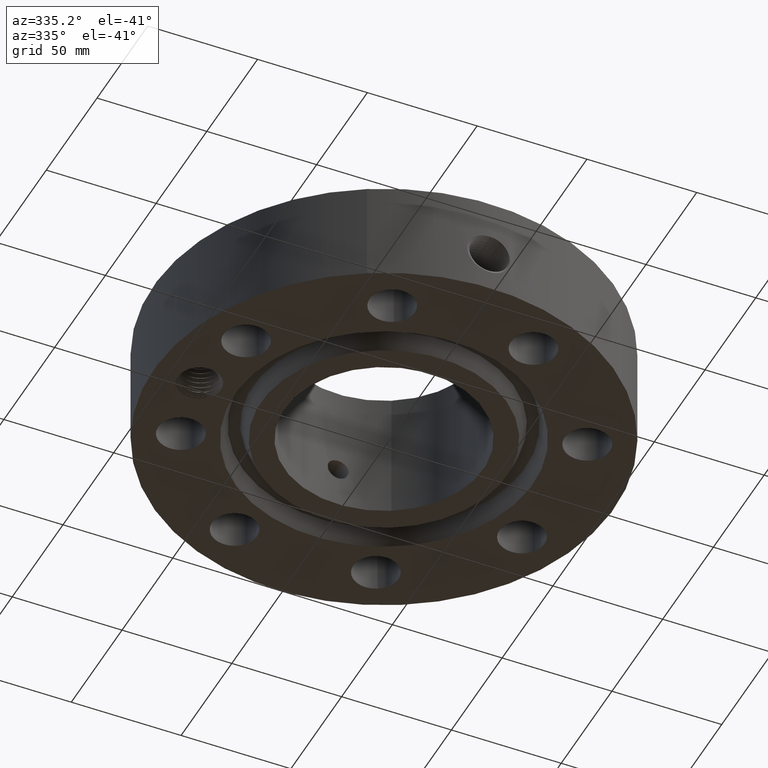
[diagram: clean part render]
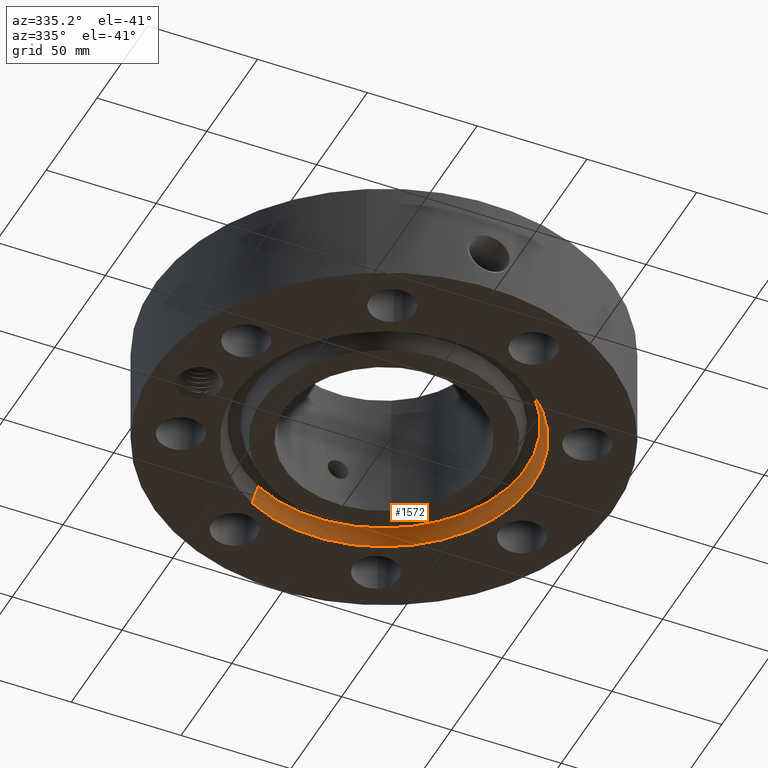
[diagram: same view with one face highlighted and labeled with its STEP entity id]
A machine part, auxiliary view. The second image highlights one B-rep face of the part: STEP entity #1572.
In plain terms, the highlighted conical surface has half-angle 23 deg.
Its self-contained STEP definition (entity closure, byte-faithful):
#377=AXIS2_PLACEMENT_3D('Circle Axis2P3D',#375,#376,$) ;
#1533=AXIS2_PLACEMENT_3D('Cone Axis2P3D',#1530,#1531,#1532) ;
#1563=AXIS2_PLACEMENT_3D('Circle Axis2P3D',#1561,#1562,$) ;
#370=CARTESIAN_POINT('Vertex',(1.28102503916,-2.34490060538,0.)) ;
#372=CARTESIAN_POINT('Vertex',(-1.28102503916,2.34490060538,0.)) ;
#375=CARTESIAN_POINT('Axis2P3D Location',(0.,5.59482469102E-016,0.)) ;
#1530=CARTESIAN_POINT('Axis2P3D Location',(0.,0.,0.294112664984)) ;
#1535=CARTESIAN_POINT('Line Origine',(-1.25109847736,2.29012040146,0.147056332492)) ;
#1539=CARTESIAN_POINT('Vertex',(-1.22117191556,2.23534019754,0.294112664984)) ;
#1546=CARTESIAN_POINT('Vertex',(1.22117191556,-2.23534019754,0.294112664984)) ;
#1549=CARTESIAN_POINT('Line Origine',(1.25109847736,-2.29012040146,0.147056332492)) ;
#1561=CARTESIAN_POINT('Axis2P3D Location',(0.,0.,0.294112664984)) ;
#376=DIRECTION('Axis2P3D Direction',(0.,0.,-0.0393700787402)) ;
#1531=DIRECTION('Axis2P3D Direction',(-0.,-0.,-0.0393700787402)) ;
#1532=DIRECTION('Axis2P3D XDirection',(-0.0188750212049,0.0345504945626,0.)) ;
#1536=DIRECTION('Vector Direction',(-0.00737505833565,0.0134999537303,-0.0362403485611)) ;
#1550=DIRECTION('Vector Direction',(0.00737505833565,-0.0134999537303,-0.0362403485611)) ;
#1562=DIRECTION('Axis2P3D Direction',(0.,0.,-0.0393700787402)) ;
#1537=VECTOR('Line Direction',#1536,0.0393700787402) ;
#1551=VECTOR('Line Direction',#1550,0.0393700787402) ;
#1567=ORIENTED_EDGE('',*,*,#379,.T.) ;
#1568=ORIENTED_EDGE('',*,*,#1553,.T.) ;
#1569=ORIENTED_EDGE('',*,*,#1565,.T.) ;
#1570=ORIENTED_EDGE('',*,*,#1541,.F.) ;
#1572=ADVANCED_FACE('PartBody',(#1571),#1534,.F.) ;
#378=CIRCLE('generated circle',#377,2.67200000001) ;
#1564=CIRCLE('generated circle',#1563,2.5471565806) ;
#1534=CONICAL_SURFACE('Cone',#1533,2.5471565806,0.401425727959) ;
#379=EDGE_CURVE('',#373,#371,#378,.T.) ;
#1541=EDGE_CURVE('',#373,#1540,#1538,.F.) ;
#1553=EDGE_CURVE('',#371,#1547,#1552,.F.) ;
#1565=EDGE_CURVE('',#1547,#1540,#1564,.F.) ;
#1566=EDGE_LOOP('',(#1567,#1568,#1569,#1570)) ;
#1571=FACE_OUTER_BOUND('',#1566,.T.) ;
#1538=LINE('Line',#1535,#1537) ;
#1552=LINE('Line',#1549,#1551) ;
#371=VERTEX_POINT('',#370) ;
#373=VERTEX_POINT('',#372) ;
#1540=VERTEX_POINT('',#1539) ;
#1547=VERTEX_POINT('',#1546) ;